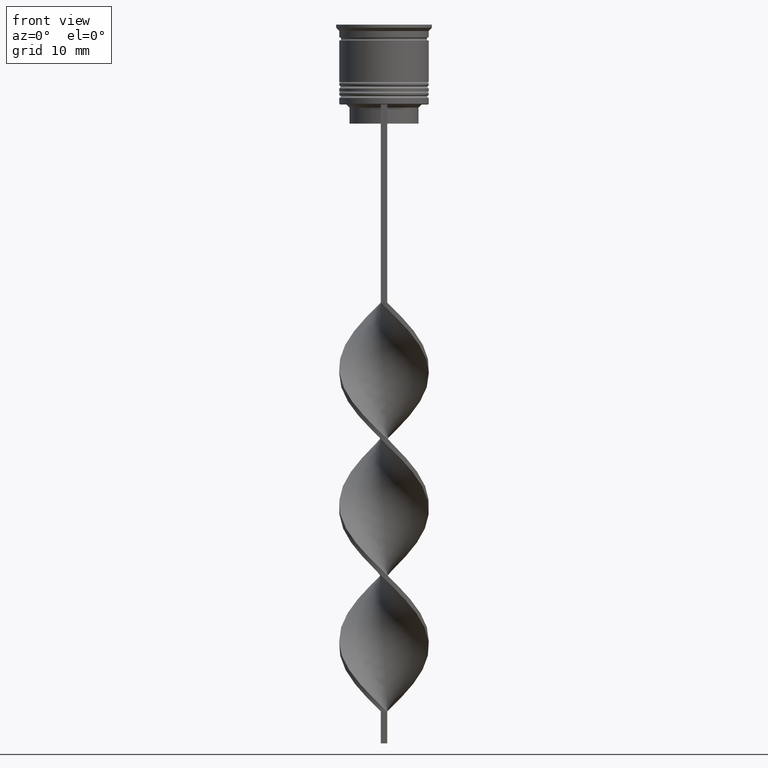
[diagram: clean part render]
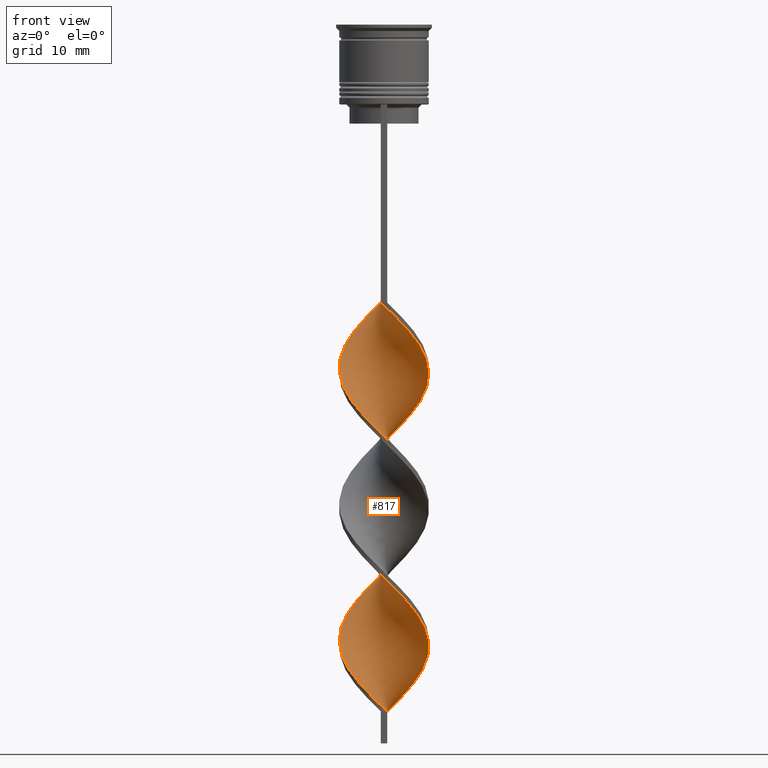
[diagram: same view with one face highlighted and labeled with its STEP entity id]
A machine part, front view. The second image highlights one B-rep face of the part: STEP entity #817.
In plain terms, the highlighted face is a freeform B-spline surface patch.
Its self-contained STEP definition (entity closure, byte-faithful):
#6 = CARTESIAN_POINT ( 'NONE',  ( -2.971407234896037863, 6.414580771288304284, -45.96153846153845990 ) ) ;
#35 = CARTESIAN_POINT ( 'NONE',  ( -1.349953882555824158, 6.939289008388872304, -44.32051282051282470 ) ) ;
#45 = CARTESIAN_POINT ( 'NONE',  ( -5.476854687890019058, -4.387945160064919747, -100.9358974358974308 ) ) ;
#53 = CARTESIAN_POINT ( 'NONE',  ( -2.160680558725931011, 6.676934889838587850, -45.14102564102563520 ) ) ;
#62 = CARTESIAN_POINT ( 'NONE',  ( -0.5000000000000000000, -6.999999999999997335, -43.50000000000000000 ) ) ;
#63 = CARTESIAN_POINT ( 'NONE',  ( 5.476854687890014617, -4.387945160064918859, -50.06410256410256210 ) ) ;
#69 = CARTESIAN_POINT ( 'NONE',  ( 3.695790217132984168, 5.965830593550582428, -104.2179487179487012 ) ) ;
#92 = CARTESIAN_POINT ( 'NONE',  ( -5.612054764172303756, 4.298947400341753600, -49.24358974358973740 ) ) ;
#98 = CARTESIAN_POINT ( 'NONE',  ( 4.267603233600013368, -5.571136566318104499, -48.42307692307691269 ) ) ;
#101 = CARTESIAN_POINT ( 'NONE',  ( 3.591144782915614453, -6.089317414547549490, -47.60256410256409509 ) ) ;
#105 = CARTESIAN_POINT ( 'NONE',  ( -7.051412738059782193, -0.5036723384328409825, -96.83333333333332860 ) ) ;
#123 = CARTESIAN_POINT ( 'NONE',  ( -6.009647691495620947, -3.722934602041179097, -57.44871794871794890 ) ) ;
#129 = CARTESIAN_POINT ( 'NONE',  ( 6.967048179568296362, 1.198476987909309566, -55.80769230769230660 ) ) ;
#137 = CARTESIAN_POINT ( 'NONE',  ( 7.051412738059782193, 0.5036723384328400943, -75.49999999999998579 ) ) ;
#145 =( BOUNDED_SURFACE ( )  B_SPLINE_SURFACE ( 1, 2, ( 
 ( #2018, #2595, #1323, #2883, #2056, #3129, #98, #3167, #949, #660, #395, #2612, #407, #1780, #2894, #129, #1251, #814, #1338, #295, #3250, #2975, #3550, #553, #2997, #1622, #234, #1355, #2460, #3570, #260, #1108, #1657, #3416, #601, #2831, #1462, #1956, #941, #886, #2811, #621, #3111, #1711, #3378, #3074, #586, #1974, #906, #2308, #926, #1738, #1431, #2029, #2845, #389, #1498, #3088, #2540, #1447, #650, #2587, #1760, #2604, #3362, #869, #1689, #2857, #2235, #3346, #1482, #349, #2011, #2567, #69, #336, #365, #2291, #312 ),
 ( #3400, #35, #53, #1160, #3123, #2251, #634, #92, #1213, #439, #2663, #2048, #1790, #3481, #3229, #2324, #417, #123, #732, #1262, #1826, #671, #2937, #1240, #2341, #3453, #2066, #1529, #2642, #2659, #1752, #3499, #1029, #1274, #2115, #1821, #1786, #1236, #2635, #137, #2358, #450, #2321, #1006, #956, #2041, #3151, #3217, #775, #801, #1042, #535, #1574, #477, #1593, #239, #1326, #3489, #3534, #2467, #3553, #3578, #1890, #1020, #3295, #2763, #742, #2687, #639, #1403, #45, #1744, #2614, #2316, #3441, #165, #2057, #680, #1781 ) ),
 .UNSPECIFIED., .F., .F., .F. ) 
 B_SPLINE_SURFACE_WITH_KNOTS ( ( 2, 2 ),
 ( 3, 2, 2, 2, 2, 2, 2, 2, 2, 2, 2, 2, 2, 2, 2, 2, 2, 2, 2, 2, 2, 2, 2, 2, 2, 2, 2, 2, 2, 2, 2, 2, 2, 2, 2, 2, 2, 2, 2, 3 ),
 ( 0.000000000000000000, 1.000000000000000000 ),
 ( 0.000000000000000000, 0.01923076923076923184, 0.03846153846153846367, 0.05769230769230769551, 0.07692307692307692735, 0.09615384615384615918, 0.1153846153846153910, 0.1346153846153846090, 0.1538461538461538547, 0.1730769230769230727, 0.1923076923076923184, 0.2115384615384615363, 0.2307692307692307820, 0.2500000000000000000, 0.2692307692307692180, 0.2884615384615384359, 0.3076923076923077094, 0.3269230769230769273, 0.3461538461538461453, 0.3653846153846153633, 0.3846153846153846367, 0.4038461538461538547, 0.4230769230769230727, 0.4423076923076922906, 0.4615384615384615641, 0.4807692307692307820, 0.5000000000000000000, 0.5192307692307692735, 0.5384615384615384359, 0.5576923076923077094, 0.5769230769230768718, 0.5961538461538461453, 0.6153846153846154188, 0.6346153846153845812, 0.6538461538461538547, 0.6730769230769231282, 0.6923076923076922906, 0.7115384615384615641, 0.7307692307692307265, 0.7500000000000000000 ),
 .UNSPECIFIED. ) 
 GEOMETRIC_REPRESENTATION_ITEM ( )  RATIONAL_B_SPLINE_SURFACE ( (
 ( 1.000000000000000000, 0.9927088740980539727, 1.000000000000000000, 0.9927088740980539727, 1.000000000000000000, 0.9927088740980539727, 1.000000000000000000, 0.9927088740980539727, 1.000000000000000000, 0.9927088740980539727, 1.000000000000000000, 0.9927088740980539727, 1.000000000000000000, 0.9927088740980539727, 1.000000000000000000, 0.9927088740980539727, 1.000000000000000000, 0.9927088740980539727, 1.000000000000000000, 0.9927088740980539727, 1.000000000000000000, 0.9927088740980539727, 1.000000000000000000, 0.9927088740980539727, 1.000000000000000000, 0.9927088740980539727, 1.000000000000000000, 0.9927088740980539727, 1.000000000000000000, 0.9927088740980539727, 1.000000000000000000, 0.9927088740980539727, 1.000000000000000000, 0.9927088740980539727, 1.000000000000000000, 0.9927088740980539727, 1.000000000000000000, 0.9927088740980539727, 1.000000000000000000, 0.9927088740980539727, 1.000000000000000000, 0.9927088740980539727, 1.000000000000000000, 0.9927088740980539727, 1.000000000000000000, 0.9927088740980539727, 1.000000000000000000, 0.9927088740980539727, 1.000000000000000000, 0.9927088740980539727, 1.000000000000000000, 0.9927088740980539727, 1.000000000000000000, 0.9927088740980539727, 1.000000000000000000, 0.9927088740980539727, 1.000000000000000000, 0.9927088740980539727, 1.000000000000000000, 0.9927088740980539727, 1.000000000000000000, 0.9927088740980539727, 1.000000000000000000, 0.9927088740980539727, 1.000000000000000000, 0.9927088740980539727, 1.000000000000000000, 0.9927088740980539727, 1.000000000000000000, 0.9927088740980539727, 1.000000000000000000, 0.9927088740980539727, 1.000000000000000000, 0.9927088740980539727, 1.000000000000000000, 0.9927088740980539727, 1.000000000000000000, 0.9927088740980539727, 1.000000000000000000),
 ( 1.000000000000000000, 0.9927088740980539727, 1.000000000000000000, 0.9927088740980539727, 1.000000000000000000, 0.9927088740980539727, 1.000000000000000000, 0.9927088740980539727, 1.000000000000000000, 0.9927088740980539727, 1.000000000000000000, 0.9927088740980539727, 1.000000000000000000, 0.9927088740980539727, 1.000000000000000000, 0.9927088740980539727, 1.000000000000000000, 0.9927088740980539727, 1.000000000000000000, 0.9927088740980539727, 1.000000000000000000, 0.9927088740980539727, 1.000000000000000000, 0.9927088740980539727, 1.000000000000000000, 0.9927088740980539727, 1.000000000000000000, 0.9927088740980539727, 1.000000000000000000, 0.9927088740980539727, 1.000000000000000000, 0.9927088740980539727, 1.000000000000000000, 0.9927088740980539727, 1.000000000000000000, 0.9927088740980539727, 1.000000000000000000, 0.9927088740980539727, 1.000000000000000000, 0.9927088740980539727, 1.000000000000000000, 0.9927088740980539727, 1.000000000000000000, 0.9927088740980539727, 1.000000000000000000, 0.9927088740980539727, 1.000000000000000000, 0.9927088740980539727, 1.000000000000000000, 0.9927088740980539727, 1.000000000000000000, 0.9927088740980539727, 1.000000000000000000, 0.9927088740980539727, 1.000000000000000000, 0.9927088740980539727, 1.000000000000000000, 0.9927088740980539727, 1.000000000000000000, 0.9927088740980539727, 1.000000000000000000, 0.9927088740980539727, 1.000000000000000000, 0.9927088740980539727, 1.000000000000000000, 0.9927088740980539727, 1.000000000000000000, 0.9927088740980539727, 1.000000000000000000, 0.9927088740980539727, 1.000000000000000000, 0.9927088740980539727, 1.000000000000000000, 0.9927088740980539727, 1.000000000000000000, 0.9927088740980539727, 1.000000000000000000, 0.9927088740980539727, 1.000000000000000000) ) ) 
 REPRESENTATION_ITEM ( '' )  SURFACE ( )  );
#152 = CARTESIAN_POINT ( 'NONE',  ( 5.612054764172301979, 4.298947400341747382, -101.7564102564102484 ) ) ;
#165 = CARTESIAN_POINT ( 'NONE',  ( -2.029523600043935616, -6.771790116641158264, -105.0384615384615330 ) ) ;
#234 = CARTESIAN_POINT ( 'NONE',  ( 0.5000000000000008882, 6.999999999999997335, -64.83333333333332860 ) ) ;
#239 = CARTESIAN_POINT ( 'NONE',  ( -2.971407234896037863, 6.414580771288304284, -88.62820512820513841 ) ) ;
#260 = CARTESIAN_POINT ( 'NONE',  ( -2.810334191479773036, 6.430553765594351212, -68.11538461538459899 ) ) ;
#261 = CARTESIAN_POINT ( 'NONE',  ( -3.591144782915619338, -6.089317414547553042, -103.3974358974358836 ) ) ;
#268 = CARTESIAN_POINT ( 'NONE',  ( 4.267603233600020474, 5.571136566318105388, -81.24358974358973740 ) ) ;
#285 = CARTESIAN_POINT ( 'NONE',  ( 2.029523600043936504, 6.771790116641158264, -83.70512820512820440 ) ) ;
#295 = CARTESIAN_POINT ( 'NONE',  ( 5.612054764172301979, 4.298947400341747382, -59.08974358974359120 ) ) ;
#312 = CARTESIAN_POINT ( 'NONE',  ( 0.5000000000000008882, 6.999999999999997335, -107.5000000000000000 ) ) ;
#329 = CARTESIAN_POINT ( 'NONE',  ( 4.420173199369931361, 5.517080415812866789, -60.73076923076922640 ) ) ;
#336 = CARTESIAN_POINT ( 'NONE',  ( 2.971407234896038307, 6.414580771288298067, -105.0384615384615330 ) ) ;
#344 = CARTESIAN_POINT ( 'NONE',  ( 6.888693778558713454, -1.340111198836289264, -53.34615384615383959 ) ) ;
#349 = CARTESIAN_POINT ( 'NONE',  ( 5.612054764172301979, 4.298947400341747382, -101.7564102564102484 ) ) ;
#352 = CARTESIAN_POINT ( 'NONE',  ( -2.160680558725931011, 6.676934889838587850, -87.80769230769230660 ) ) ;
#365 = CARTESIAN_POINT ( 'NONE',  ( 2.160680558725932343, 6.676934889838581633, -105.8589743589743506 ) ) ;
#386 = CARTESIAN_POINT ( 'NONE',  ( -6.725974819057657150, -2.176550059239735546, -98.47435897435896379 ) ) ;
#389 = CARTESIAN_POINT ( 'NONE',  ( 2.029523600043931175, -6.771790116641153823, -88.62820512820513841 ) ) ;
#395 = CARTESIAN_POINT ( 'NONE',  ( 6.367811255276632387, -2.949742330640456878, -51.70512820512820440 ) ) ;
#407 = CARTESIAN_POINT ( 'NONE',  ( 6.888693778558713454, -1.340111198836289264, -53.34615384615383959 ) ) ;
#410 = EDGE_CURVE ( 'NONE', #1446, #630, #1854, .T. ) ;
#411 = CARTESIAN_POINT ( 'NONE',  ( 5.016113981771116670, 4.908013908077306198, -102.5769230769230660 ) ) ;
#412 = CARTESIAN_POINT ( 'NONE',  ( 0.4999999999999991673, -7.000000000000002665, -107.5000000000000000 ) ) ;
#417 = CARTESIAN_POINT ( 'NONE',  ( -6.367811255276639493, -2.949742330640456434, -56.62820512820513130 ) ) ;
#429 = CARTESIAN_POINT ( 'NONE',  ( 6.722416142319168841, 2.014726087955040157, -99.29487179487178139 ) ) ;
#439 = CARTESIAN_POINT ( 'NONE',  ( -6.477784105070046650, 2.830975188000774967, -50.88461538461538680 ) ) ;
#447 = CARTESIAN_POINT ( 'NONE',  ( 6.367811255276632387, -2.949742330640456878, -94.37179487179486159 ) ) ;
#450 = CARTESIAN_POINT ( 'NONE',  ( 6.725974819057658038, 2.176550059239733326, -77.14102564102563520 ) ) ;
#464 = CARTESIAN_POINT ( 'NONE',  ( 2.971407234896035199, -6.414580771288305172, -67.29487179487178139 ) ) ;
#477 = CARTESIAN_POINT ( 'NONE',  ( -1.349953882555824158, 6.939289008388872304, -86.98717948717948900 ) ) ;
#481 = CARTESIAN_POINT ( 'NONE',  ( -1.349953882555827489, -6.939289008388866975, -85.34615384615385381 ) ) ;
#506 = CARTESIAN_POINT ( 'NONE',  ( 6.367811255276638605, 2.949742330640457322, -77.96153846153845279 ) ) ;
#521 = CARTESIAN_POINT ( 'NONE',  ( 4.420173199369933137, -5.517080415812873007, -68.93589743589743080 ) ) ;
#535 = CARTESIAN_POINT ( 'NONE',  ( 0.3499538825558280997, 7.060710991611133025, -85.34615384615383959 ) ) ;
#553 = CARTESIAN_POINT ( 'NONE',  ( 2.971407234896038307, 6.414580771288298067, -62.37179487179486870 ) ) ;
#554 = CARTESIAN_POINT ( 'NONE',  ( -7.009230458814042386, 0.3474023247382359014, -96.01282051282051100 ) ) ;
#586 = CARTESIAN_POINT ( 'NONE',  ( -5.016113981771117558, -4.908013908077305310, -81.24358974358973740 ) ) ;
#601 = CARTESIAN_POINT ( 'NONE',  ( -5.476854687890014617, 4.387945160064918859, -71.39743589743588359 ) ) ;
#612 = CARTESIAN_POINT ( 'NONE',  ( -1.349953882555824158, 6.939289008388872304, -44.32051282051282470 ) ) ;
#615 = CARTESIAN_POINT ( 'NONE',  ( 2.971407234896037863, 6.414580771288298067, -62.37179487179486870 ) ) ;
#621 = CARTESIAN_POINT ( 'NONE',  ( -6.967048179568297250, -1.198476987909306679, -77.14102564102563520 ) ) ;
#630 = VERTEX_POINT ( 'NONE', #412 ) ;
#634 = CARTESIAN_POINT ( 'NONE',  ( -5.016113981771117558, 4.908013908077312415, -48.42307692307691269 ) ) ;
#639 = CARTESIAN_POINT ( 'NONE',  ( -6.367811255276639493, -2.949742330640456434, -99.29487179487178139 ) ) ;
#642 = CARTESIAN_POINT ( 'NONE',  ( 6.722416142319168841, 2.014726087955040157, -56.62820512820513130 ) ) ;
#650 = CARTESIAN_POINT ( 'NONE',  ( 5.476854687890014617, -4.387945160064918859, -92.73076923076922640 ) ) ;
#656 = CARTESIAN_POINT ( 'NONE',  ( 0.4999999999999996669, -2.333333333333336590, -107.5000000000000000 ) ) ;
#659 = VECTOR ( 'NONE', #1068, 1000.000000000000000 ) ;
#660 = CARTESIAN_POINT ( 'NONE',  ( 6.009647691495616506, -3.722934602041177321, -50.88461538461538680 ) ) ;
#664 = CARTESIAN_POINT ( 'NONE',  ( -2.029523600043928955, 6.771790116641154711, -67.29487179487178139 ) ) ;
#671 = CARTESIAN_POINT ( 'NONE',  ( -3.591144782915619338, -6.089317414547552154, -60.73076923076922640 ) ) ;
#679 = CARTESIAN_POINT ( 'NONE',  ( -4.267603233600019585, -5.571136566318106276, -59.91025641025640880 ) ) ;
#680 = CARTESIAN_POINT ( 'NONE',  ( -0.3499538825558272115, -7.060710991611133025, -106.6794871794871682 ) ) ;
#683 = CARTESIAN_POINT ( 'NONE',  ( 2.971407234896037863, 6.414580771288298067, -105.0384615384615188 ) ) ;
#699 = CARTESIAN_POINT ( 'NONE',  ( -7.051412738059777752, 0.5036723384328427588, -75.50000000000000000 ) ) ;
#721 = CARTESIAN_POINT ( 'NONE',  ( -6.725974819057651821, 2.176550059239734658, -73.85897435897436480 ) ) ;
#732 = CARTESIAN_POINT ( 'NONE',  ( -5.476854687890019058, -4.387945160064919747, -58.26923076923076650 ) ) ;
#742 = CARTESIAN_POINT ( 'NONE',  ( -6.888693778558718783, -1.340111198836287487, -97.65384615384614619 ) ) ;
#762 = CARTESIAN_POINT ( 'NONE',  ( 2.029523600043931175, -6.771790116641153823, -88.62820512820512420 ) ) ;
#775 = CARTESIAN_POINT ( 'NONE',  ( 2.810334191479780586, 6.430553765594353877, -82.88461538461537259 ) ) ;
#782 = CARTESIAN_POINT ( 'NONE',  ( 6.725974819057658038, 2.176550059239732882, -77.14102564102563520 ) ) ;
#801 = CARTESIAN_POINT ( 'NONE',  ( 2.029523600043936060, 6.771790116641158264, -83.70512820512820440 ) ) ;
#814 = CARTESIAN_POINT ( 'NONE',  ( 6.477784105070041321, 2.830975188000771858, -57.44871794871794890 ) ) ;
#815 = CARTESIAN_POINT ( 'NONE',  ( -4.944061684284419833, -5.052955718088660397, -101.7564102564102484 ) ) ;
#817 = ADVANCED_FACE ( 'NONE', ( #2704 ), #145, .T. ) ;
#839 = CARTESIAN_POINT ( 'NONE',  ( 0.5000000000000008882, 6.999999999999997335, -107.5000000000000000 ) ) ;
#869 = CARTESIAN_POINT ( 'NONE',  ( 7.051412738059776864, -0.5036723384328418707, -96.83333333333332860 ) ) ;
#870 = CARTESIAN_POINT ( 'NONE',  ( -6.888693778558718783, -1.340111198836287487, -97.65384615384614619 ) ) ;
#880 = CARTESIAN_POINT ( 'NONE',  ( 0.3499538825558234922, -7.060710991611127696, -44.32051282051282470 ) ) ;
#886 = CARTESIAN_POINT ( 'NONE',  ( -7.051412738059776864, 0.5036723384328427588, -75.49999999999998579 ) ) ;
#906 = CARTESIAN_POINT ( 'NONE',  ( -3.695790217132987721, -5.965830593550580652, -82.88461538461537259 ) ) ;
#921 = CARTESIAN_POINT ( 'NONE',  ( 7.009230458814037057, 0.3474023247382328483, -54.98717948717948190 ) ) ;
#926 = CARTESIAN_POINT ( 'NONE',  ( -2.160680558725935896, -6.676934889838579856, -84.52564102564103621 ) ) ;
#938 = CARTESIAN_POINT ( 'NONE',  ( -2.029523600043935616, -6.771790116641158264, -105.0384615384615188 ) ) ;
#941 = CARTESIAN_POINT ( 'NONE',  ( -6.888693778558713454, 1.340111198836291706, -74.67948717948718240 ) ) ;
#949 = CARTESIAN_POINT ( 'NONE',  ( 5.476854687890014617, -4.387945160064918859, -50.06410256410256210 ) ) ;
#950 = CARTESIAN_POINT ( 'NONE',  ( -3.591144782915619338, -6.089317414547553042, -60.73076923076922640 ) ) ;
#953 = CARTESIAN_POINT ( 'NONE',  ( 3.695790217132984168, 5.965830593550582428, -61.55128205128204399 ) ) ;
#956 = CARTESIAN_POINT ( 'NONE',  ( 5.476854687890019946, 4.387945160064918859, -79.60256410256410220 ) ) ;
#973 = CARTESIAN_POINT ( 'NONE',  ( 5.476854687890014617, -4.387945160064918859, -92.73076923076922640 ) ) ;
#983 = CARTESIAN_POINT ( 'NONE',  ( -6.044919434621174759, 3.564961294171264949, -92.73076923076922640 ) ) ;
#989 = CARTESIAN_POINT ( 'NONE',  ( -6.009647691495613842, 3.722934602041180430, -72.21794871794871540 ) ) ;
#1004 = CARTESIAN_POINT ( 'NONE',  ( 4.420173199369931361, 5.517080415812866789, -103.3974358974358836 ) ) ;
#1006 = CARTESIAN_POINT ( 'NONE',  ( 6.009647691495623612, 3.722934602041175989, -78.78205128205127039 ) ) ;
#1020 = CARTESIAN_POINT ( 'NONE',  ( -6.967048179568302579, 1.198476987909311342, -95.19230769230769340 ) ) ;
#1024 = CARTESIAN_POINT ( 'NONE',  ( -5.612054764172303756, -4.298947400341743830, -80.42307692307691980 ) ) ;
#1029 = CARTESIAN_POINT ( 'NONE',  ( 5.016113981771116670, -4.908013908077313303, -69.75641025641024839 ) ) ;
#1042 = CARTESIAN_POINT ( 'NONE',  ( 1.189738741299885438, 6.916250554126144756, -84.52564102564103621 ) ) ;
#1046 = CARTESIAN_POINT ( 'NONE',  ( -3.695790217132987721, -5.965830593550580652, -82.88461538461537259 ) ) ;
#1062 = CARTESIAN_POINT ( 'NONE',  ( 7.009230458814042386, -0.3474023247382383994, -74.67948717948718240 ) ) ;
#1068 = DIRECTION ( 'NONE',  ( 0.000000000000000000, 1.000000000000000000, 0.000000000000000000 ) ) ;
#1108 = CARTESIAN_POINT ( 'NONE',  ( -3.591144782915613565, 6.089317414547550378, -68.93589743589743080 ) ) ;
#1111 = CARTESIAN_POINT ( 'NONE',  ( 1.189738741299885438, 6.916250554126144756, -84.52564102564103621 ) ) ;
#1115 = CARTESIAN_POINT ( 'NONE',  ( -5.612054764172303756, 4.298947400341753600, -49.24358974358974450 ) ) ;
#1133 = CARTESIAN_POINT ( 'NONE',  ( -5.016113981771117558, 4.908013908077312415, -48.42307692307691269 ) ) ;
#1144 = CARTESIAN_POINT ( 'NONE',  ( -2.810334191479776589, -6.430553765594355653, -104.2179487179487012 ) ) ;
#1160 = CARTESIAN_POINT ( 'NONE',  ( -2.971407234896037863, 6.414580771288304284, -45.96153846153845279 ) ) ;
#1167 = CARTESIAN_POINT ( 'NONE',  ( -7.009230458814042386, 0.3474023247382359014, -53.34615384615383959 ) ) ;
#1169 = CARTESIAN_POINT ( 'NONE',  ( -0.5000000000000000000, -6.999999999999997335, -43.50000000000000000 ) ) ;
#1184 = CARTESIAN_POINT ( 'NONE',  ( 2.160680558725932343, 6.676934889838581633, -63.19230769230768630 ) ) ;
#1205 = CARTESIAN_POINT ( 'NONE',  ( -2.810334191479776589, -6.430553765594355653, -61.55128205128204399 ) ) ;
#1213 = CARTESIAN_POINT ( 'NONE',  ( -6.044919434621174759, 3.564961294171264949, -50.06410256410256210 ) ) ;
#1222 = CARTESIAN_POINT ( 'NONE',  ( -5.476854687890019058, -4.387945160064919747, -58.26923076923076650 ) ) ;
#1225 = CARTESIAN_POINT ( 'NONE',  ( 6.009647691495615618, -3.722934602041177765, -50.88461538461537970 ) ) ;
#1236 = CARTESIAN_POINT ( 'NONE',  ( 6.967048179568301691, -1.198476987909310898, -73.85897435897436480 ) ) ;
#1240 = CARTESIAN_POINT ( 'NONE',  ( -2.029523600043935616, -6.771790116641158264, -62.37179487179486870 ) ) ;
#1251 = CARTESIAN_POINT ( 'NONE',  ( 6.722416142319168841, 2.014726087955040157, -56.62820512820513130 ) ) ;
#1262 = CARTESIAN_POINT ( 'NONE',  ( -4.944061684284419833, -5.052955718088660397, -59.08974358974359120 ) ) ;
#1267 =( BOUNDED_CURVE ( )  B_SPLINE_CURVE ( 2, ( #1169, #880, #2263, #1720, #1456, #101, #2561, #1968, #63, #1225, #2302, #2319, #344, #1701, #921, #1471, #642, #1494, #3426, #2826, #3373, #329, #953, #615, #1184, #2279, #3394, #2005, #3144, #664, #2886, #2913, #1558, #2060, #3518, #989, #2899, #721, #3197, #699, #1272, #3170, #2076, #2371, #2414, #1024, #1836, #1524, #1046, #2931, #2964, #481, #3183, #2632, #1547, #762, #2690, #1853, #1596, #3463, #973, #3477, #447, #3493, #3222, #3239, #1800, #2129, #429, #2333, #2655, #152, #411, #1004, #2112, #683, #2090, #2712, #1819 ),
 .UNSPECIFIED., .F., .T. ) 
 B_SPLINE_CURVE_WITH_KNOTS ( ( 3, 2, 2, 2, 2, 2, 2, 2, 2, 2, 2, 2, 2, 2, 2, 2, 2, 2, 2, 2, 2, 2, 2, 2, 2, 2, 2, 2, 2, 2, 2, 2, 2, 2, 2, 2, 2, 2, 2, 3 ),
 ( 0.000000000000000000, 0.01923076923076923184, 0.03846153846153846367, 0.05769230769230768857, 0.07692307692307692735, 0.09615384615384615918, 0.1153846153846153771, 0.1346153846153846090, 0.1538461538461538547, 0.1730769230769230449, 0.1923076923076923184, 0.2115384615384615363, 0.2307692307692307543, 0.2500000000000000000, 0.2692307692307692180, 0.2884615384615384359, 0.3076923076923077094, 0.3269230769230769273, 0.3461538461538460898, 0.3653846153846153633, 0.3846153846153846367, 0.4038461538461539102, 0.4230769230769230727, 0.4423076923076922906, 0.4615384615384615086, 0.4807692307692307820, 0.5000000000000000000, 0.5192307692307692735, 0.5384615384615384359, 0.5576923076923077094, 0.5769230769230768718, 0.5961538461538461453, 0.6153846153846154188, 0.6346153846153845812, 0.6538461538461538547, 0.6730769230769230171, 0.6923076923076921796, 0.7115384615384615641, 0.7307692307692307265, 0.7500000000000000000 ),
 .UNSPECIFIED. ) 
 CURVE ( )  GEOMETRIC_REPRESENTATION_ITEM ( )  RATIONAL_B_SPLINE_CURVE ( ( 1.000000000000000000, 0.9927088740980539727, 1.000000000000000000, 0.9927088740980539727, 1.000000000000000000, 0.9927088740980539727, 1.000000000000000000, 0.9927088740980539727, 1.000000000000000000, 0.9927088740980539727, 1.000000000000000000, 0.9927088740980539727, 1.000000000000000000, 0.9927088740980539727, 1.000000000000000000, 0.9927088740980539727, 1.000000000000000000, 0.9927088740980539727, 1.000000000000000000, 0.9927088740980539727, 1.000000000000000000, 0.9927088740980539727, 1.000000000000000000, 0.9927088740980539727, 1.000000000000000000, 0.9927088740980539727, 1.000000000000000000, 0.9927088740980539727, 1.000000000000000000, 0.9927088740980539727, 1.000000000000000000, 0.9927088740980539727, 1.000000000000000000, 0.9927088740980539727, 1.000000000000000000, 0.9927088740980539727, 1.000000000000000000, 0.9927088740980539727, 1.000000000000000000, 0.9927088740980539727, 1.000000000000000000, 0.9927088740980539727, 1.000000000000000000, 0.9927088740980539727, 1.000000000000000000, 0.9927088740980539727, 1.000000000000000000, 0.9927088740980539727, 1.000000000000000000, 0.9927088740980539727, 1.000000000000000000, 0.9927088740980539727, 1.000000000000000000, 0.9927088740980539727, 1.000000000000000000, 0.9927088740980539727, 1.000000000000000000, 0.9927088740980539727, 1.000000000000000000, 0.9927088740980539727, 1.000000000000000000, 0.9927088740980539727, 1.000000000000000000, 0.9927088740980539727, 1.000000000000000000, 0.9927088740980539727, 1.000000000000000000, 0.9927088740980539727, 1.000000000000000000, 0.9927088740980539727, 1.000000000000000000, 0.9927088740980539727, 1.000000000000000000, 0.9927088740980539727, 1.000000000000000000, 0.9927088740980539727, 1.000000000000000000, 0.9927088740980539727, 1.000000000000000000 ) ) 
 REPRESENTATION_ITEM ( '' )  );
#1272 = CARTESIAN_POINT ( 'NONE',  ( -7.009230458814037057, -0.3474023247382289625, -76.32051282051281760 ) ) ;
#1274 = CARTESIAN_POINT ( 'NONE',  ( 5.612054764172302868, -4.298947400341755376, -70.57692307692306599 ) ) ;
#1284 = CARTESIAN_POINT ( 'NONE',  ( -6.477784105070046650, 2.830975188000775411, -93.55128205128204399 ) ) ;
#1314 = CARTESIAN_POINT ( 'NONE',  ( 6.477784105070043985, -2.830975188000779408, -72.21794871794871540 ) ) ;
#1318 = CARTESIAN_POINT ( 'NONE',  ( -0.5000000000000000000, 7.000000000000002665, -43.50000000000000000 ) ) ;
#1323 = CARTESIAN_POINT ( 'NONE',  ( 1.189738741299877445, -6.916250554126140315, -45.14102564102563520 ) ) ;
#1326 = CARTESIAN_POINT ( 'NONE',  ( -3.695790217132985944, 5.965830593550586869, -89.44871794871794179 ) ) ;
#1338 = CARTESIAN_POINT ( 'NONE',  ( 6.044919434621172094, 3.564961294171260509, -58.26923076923076650 ) ) ;
#1355 = CARTESIAN_POINT ( 'NONE',  ( -0.3499538825558217714, 7.060710991611127696, -65.65384615384614619 ) ) ;
#1396 = CARTESIAN_POINT ( 'NONE',  ( 0.3499538825558280997, 7.060710991611133025, -85.34615384615385381 ) ) ;
#1403 = CARTESIAN_POINT ( 'NONE',  ( -6.009647691495620947, -3.722934602041179097, -100.1153846153846274 ) ) ;
#1431 = CARTESIAN_POINT ( 'NONE',  ( -0.5000000000000000000, -6.999999999999997335, -86.16666666666667140 ) ) ;
#1446 = VERTEX_POINT ( 'NONE', #1318 ) ;
#1447 = CARTESIAN_POINT ( 'NONE',  ( 4.944061684284414504, -5.052955718088659509, -91.91025641025643722 ) ) ;
#1456 = CARTESIAN_POINT ( 'NONE',  ( 2.810334191479773480, -6.430553765594351212, -46.78205128205127750 ) ) ;
#1462 = CARTESIAN_POINT ( 'NONE',  ( -6.367811255276632387, 2.949742330640457766, -73.03846153846153300 ) ) ;
#1471 = CARTESIAN_POINT ( 'NONE',  ( 6.967048179568297250, 1.198476987909309344, -55.80769230769230660 ) ) ;
#1475 = CARTESIAN_POINT ( 'NONE',  ( 0.4999999999999991673, -7.000000000000002665, -107.5000000000000000 ) ) ;
#1482 = CARTESIAN_POINT ( 'NONE',  ( 6.044919434621172094, 3.564961294171260509, -100.9358974358974308 ) ) ;
#1494 = CARTESIAN_POINT ( 'NONE',  ( 6.477784105070041321, 2.830975188000771858, -57.44871794871794890 ) ) ;
#1497 = CARTESIAN_POINT ( 'NONE',  ( -6.367811255276639493, -2.949742330640456434, -99.29487179487178139 ) ) ;
#1498 = CARTESIAN_POINT ( 'NONE',  ( 2.810334191479773480, -6.430553765594351212, -89.44871794871794179 ) ) ;
#1524 = CARTESIAN_POINT ( 'NONE',  ( -4.420173199369932249, -5.517080415812866789, -82.06410256410255499 ) ) ;
#1529 = CARTESIAN_POINT ( 'NONE',  ( 1.349953882555822382, -6.939289008388872304, -65.65384615384614619 ) ) ;
#1547 = CARTESIAN_POINT ( 'NONE',  ( 1.189738741299877445, -6.916250554126140315, -87.80769230769230660 ) ) ;
#1558 = CARTESIAN_POINT ( 'NONE',  ( -4.267603233600012480, 5.571136566318105388, -69.75641025641024839 ) ) ;
#1574 = CARTESIAN_POINT ( 'NONE',  ( -0.5000000000000000000, 7.000000000000002665, -86.16666666666667140 ) ) ;
#1593 = CARTESIAN_POINT ( 'NONE',  ( -2.160680558725931011, 6.676934889838587850, -87.80769230769230660 ) ) ;
#1596 = CARTESIAN_POINT ( 'NONE',  ( 4.267603233600013368, -5.571136566318104499, -91.08974358974359120 ) ) ;
#1606 = EDGE_LOOP ( 'NONE', ( #2965, #2769, #3395, #3279 ) ) ;
#1622 = CARTESIAN_POINT ( 'NONE',  ( 1.349953882555826601, 6.939289008388866975, -64.01282051282051100 ) ) ;
#1631 = CARTESIAN_POINT ( 'NONE',  ( 5.476854687890019946, 4.387945160064918859, -79.60256410256410220 ) ) ;
#1647 = CARTESIAN_POINT ( 'NONE',  ( 2.160680558725928790, -6.676934889838588738, -66.47435897435896379 ) ) ;
#1657 = CARTESIAN_POINT ( 'NONE',  ( -4.267603233600012480, 5.571136566318105388, -69.75641025641024839 ) ) ;
#1659 = EDGE_CURVE ( 'NONE', #1894, #1446, #2538, .T. ) ;
#1689 = CARTESIAN_POINT ( 'NONE',  ( 7.009230458814037057, 0.3474023247382328483, -97.65384615384614619 ) ) ;
#1701 = CARTESIAN_POINT ( 'NONE',  ( 7.051412738059777752, -0.5036723384328418707, -54.16666666666666430 ) ) ;
#1711 = CARTESIAN_POINT ( 'NONE',  ( -6.477784105070042209, -2.830975188000768306, -78.78205128205127039 ) ) ;
#1720 = CARTESIAN_POINT ( 'NONE',  ( 2.029523600043931175, -6.771790116641153823, -45.96153846153845990 ) ) ;
#1738 = CARTESIAN_POINT ( 'NONE',  ( -1.349953882555827489, -6.939289008388866975, -85.34615384615383959 ) ) ;
#1744 = CARTESIAN_POINT ( 'NONE',  ( -4.944061684284419833, -5.052955718088660397, -101.7564102564102484 ) ) ;
#1752 = CARTESIAN_POINT ( 'NONE',  ( 3.695790217132985500, -5.965830593550586869, -68.11538461538459899 ) ) ;
#1760 = CARTESIAN_POINT ( 'NONE',  ( 6.367811255276632387, -2.949742330640456878, -94.37179487179486159 ) ) ;
#1780 = CARTESIAN_POINT ( 'NONE',  ( 7.051412738059776864, -0.5036723384328418707, -54.16666666666665719 ) ) ;
#1781 = CARTESIAN_POINT ( 'NONE',  ( 0.4999999999999991673, -7.000000000000002665, -107.5000000000000000 ) ) ;
#1786 = CARTESIAN_POINT ( 'NONE',  ( 6.722416142319174170, -2.014726087955045042, -73.03846153846153300 ) ) ;
#1790 = CARTESIAN_POINT ( 'NONE',  ( -7.009230458814042386, 0.3474023247382359014, -53.34615384615383959 ) ) ;
#1800 = CARTESIAN_POINT ( 'NONE',  ( 7.009230458814037057, 0.3474023247382328483, -97.65384615384614619 ) ) ;
#1819 = CARTESIAN_POINT ( 'NONE',  ( 0.5000000000000008882, 6.999999999999997335, -107.5000000000000000 ) ) ;
#1821 = CARTESIAN_POINT ( 'NONE',  ( 6.477784105070043985, -2.830975188000778964, -72.21794871794871540 ) ) ;
#1826 = CARTESIAN_POINT ( 'NONE',  ( -4.267603233600019585, -5.571136566318106276, -59.91025641025640880 ) ) ;
#1836 = CARTESIAN_POINT ( 'NONE',  ( -5.016113981771117558, -4.908013908077305310, -81.24358974358973740 ) ) ;
#1853 = CARTESIAN_POINT ( 'NONE',  ( 3.591144782915614453, -6.089317414547549490, -90.26923076923077360 ) ) ;
#1854 =( BOUNDED_CURVE ( )  B_SPLINE_CURVE ( 2, ( #1911, #612, #1966, #6, #2824, #3083, #1133, #1115, #2770, #2211, #2493, #2226, #1167, #3339, #2549, #1985, #2353, #2019, #1222, #3460, #679, #950, #1205, #3408, #2315, #2745, #3029, #2195, #1647, #464, #2173, #521, #3599, #2692, #3008, #1314, #2966, #2432, #1062, #2150, #3259, #782, #506, #2729, #1631, #2254, #268, #2781, #2488, #285, #1111, #1396, #2504, #2032, #352, #2327, #3191, #2348, #2311, #3419, #983, #1284, #2382, #3212, #554, #105, #870, #386, #1497, #3291, #2203, #815, #3309, #261, #1144, #938, #3018, #1957, #1475 ),
 .UNSPECIFIED., .F., .T. ) 
 B_SPLINE_CURVE_WITH_KNOTS ( ( 3, 2, 2, 2, 2, 2, 2, 2, 2, 2, 2, 2, 2, 2, 2, 2, 2, 2, 2, 2, 2, 2, 2, 2, 2, 2, 2, 2, 2, 2, 2, 2, 2, 2, 2, 2, 2, 2, 2, 3 ),
 ( 0.000000000000000000, 0.01923076923076923184, 0.03846153846153846367, 0.05769230769230768857, 0.07692307692307692735, 0.09615384615384615918, 0.1153846153846153771, 0.1346153846153846090, 0.1538461538461538547, 0.1730769230769230449, 0.1923076923076923184, 0.2115384615384615363, 0.2307692307692307543, 0.2500000000000000000, 0.2692307692307692180, 0.2884615384615384359, 0.3076923076923077094, 0.3269230769230769273, 0.3461538461538460898, 0.3653846153846153633, 0.3846153846153846367, 0.4038461538461539102, 0.4230769230769230727, 0.4423076923076922906, 0.4615384615384615086, 0.4807692307692307820, 0.5000000000000000000, 0.5192307692307692735, 0.5384615384615384359, 0.5576923076923077094, 0.5769230769230768718, 0.5961538461538461453, 0.6153846153846154188, 0.6346153846153845812, 0.6538461538461538547, 0.6730769230769230171, 0.6923076923076921796, 0.7115384615384615641, 0.7307692307692307265, 0.7500000000000000000 ),
 .UNSPECIFIED. ) 
 CURVE ( )  GEOMETRIC_REPRESENTATION_ITEM ( )  RATIONAL_B_SPLINE_CURVE ( ( 1.000000000000000000, 0.9927088740980539727, 1.000000000000000000, 0.9927088740980539727, 1.000000000000000000, 0.9927088740980539727, 1.000000000000000000, 0.9927088740980539727, 1.000000000000000000, 0.9927088740980539727, 1.000000000000000000, 0.9927088740980539727, 1.000000000000000000, 0.9927088740980539727, 1.000000000000000000, 0.9927088740980539727, 1.000000000000000000, 0.9927088740980539727, 1.000000000000000000, 0.9927088740980539727, 1.000000000000000000, 0.9927088740980539727, 1.000000000000000000, 0.9927088740980539727, 1.000000000000000000, 0.9927088740980539727, 1.000000000000000000, 0.9927088740980539727, 1.000000000000000000, 0.9927088740980539727, 1.000000000000000000, 0.9927088740980539727, 1.000000000000000000, 0.9927088740980539727, 1.000000000000000000, 0.9927088740980539727, 1.000000000000000000, 0.9927088740980539727, 1.000000000000000000, 0.9927088740980539727, 1.000000000000000000, 0.9927088740980539727, 1.000000000000000000, 0.9927088740980539727, 1.000000000000000000, 0.9927088740980539727, 1.000000000000000000, 0.9927088740980539727, 1.000000000000000000, 0.9927088740980539727, 1.000000000000000000, 0.9927088740980539727, 1.000000000000000000, 0.9927088740980539727, 1.000000000000000000, 0.9927088740980539727, 1.000000000000000000, 0.9927088740980539727, 1.000000000000000000, 0.9927088740980539727, 1.000000000000000000, 0.9927088740980539727, 1.000000000000000000, 0.9927088740980539727, 1.000000000000000000, 0.9927088740980539727, 1.000000000000000000, 0.9927088740980539727, 1.000000000000000000, 0.9927088740980539727, 1.000000000000000000, 0.9927088740980539727, 1.000000000000000000, 0.9927088740980539727, 1.000000000000000000, 0.9927088740980539727, 1.000000000000000000, 0.9927088740980539727, 1.000000000000000000 ) ) 
 REPRESENTATION_ITEM ( '' )  );
#1890 = CARTESIAN_POINT ( 'NONE',  ( -6.722416142319174170, 2.014726087955044598, -94.37179487179486159 ) ) ;
#1894 = VERTEX_POINT ( 'NONE', #62 ) ;
#1911 = CARTESIAN_POINT ( 'NONE',  ( -0.5000000000000000000, 7.000000000000002665, -43.50000000000000000 ) ) ;
#1956 = CARTESIAN_POINT ( 'NONE',  ( -6.725974819057651821, 2.176550059239735102, -73.85897435897436480 ) ) ;
#1957 = CARTESIAN_POINT ( 'NONE',  ( -0.3499538825558272115, -7.060710991611133025, -106.6794871794871824 ) ) ;
#1966 = CARTESIAN_POINT ( 'NONE',  ( -2.160680558725931011, 6.676934889838587850, -45.14102564102563520 ) ) ;
#1968 = CARTESIAN_POINT ( 'NONE',  ( 4.944061684284414504, -5.052955718088659509, -49.24358974358974450 ) ) ;
#1974 = CARTESIAN_POINT ( 'NONE',  ( -4.420173199369932249, -5.517080415812865901, -82.06410256410255499 ) ) ;
#1985 = CARTESIAN_POINT ( 'NONE',  ( -6.725974819057657150, -2.176550059239735546, -55.80769230769230660 ) ) ;
#2005 = CARTESIAN_POINT ( 'NONE',  ( -0.3499538825558217714, 7.060710991611127696, -65.65384615384614619 ) ) ;
#2011 = CARTESIAN_POINT ( 'NONE',  ( 5.016113981771116670, 4.908013908077306198, -102.5769230769230660 ) ) ;
#2018 = CARTESIAN_POINT ( 'NONE',  ( -0.5000000000000000000, -6.999999999999997335, -43.50000000000000000 ) ) ;
#2019 = CARTESIAN_POINT ( 'NONE',  ( -6.009647691495620947, -3.722934602041179097, -57.44871794871794890 ) ) ;
#2029 = CARTESIAN_POINT ( 'NONE',  ( 0.3499538825558234922, -7.060710991611127696, -86.98717948717948900 ) ) ;
#2032 = CARTESIAN_POINT ( 'NONE',  ( -1.349953882555824158, 6.939289008388872304, -86.98717948717948900 ) ) ;
#2041 = CARTESIAN_POINT ( 'NONE',  ( 4.944061684284423386, 5.052955718088656845, -80.42307692307691980 ) ) ;
#2048 = CARTESIAN_POINT ( 'NONE',  ( -6.967048179568302579, 1.198476987909311342, -52.52564102564103621 ) ) ;
#2056 = CARTESIAN_POINT ( 'NONE',  ( 2.810334191479773480, -6.430553765594351212, -46.78205128205127750 ) ) ;
#2057 = CARTESIAN_POINT ( 'NONE',  ( -1.189738741299881442, -6.916250554126144756, -105.8589743589743506 ) ) ;
#2060 = CARTESIAN_POINT ( 'NONE',  ( -4.944061684284411839, 5.052955718088659509, -70.57692307692306599 ) ) ;
#2066 = CARTESIAN_POINT ( 'NONE',  ( 0.4999999999999991673, -7.000000000000002665, -64.83333333333332860 ) ) ;
#2076 = CARTESIAN_POINT ( 'NONE',  ( -6.722416142319169730, -2.014726087955041045, -77.96153846153845279 ) ) ;
#2090 = CARTESIAN_POINT ( 'NONE',  ( 2.160680558725932343, 6.676934889838581633, -105.8589743589743506 ) ) ;
#2112 = CARTESIAN_POINT ( 'NONE',  ( 3.695790217132984168, 5.965830593550582428, -104.2179487179487012 ) ) ;
#2115 = CARTESIAN_POINT ( 'NONE',  ( 6.044919434621174759, -3.564961294171264949, -71.39743589743588359 ) ) ;
#2129 = CARTESIAN_POINT ( 'NONE',  ( 6.967048179568297250, 1.198476987909309344, -98.47435897435896379 ) ) ;
#2150 = CARTESIAN_POINT ( 'NONE',  ( 7.051412738059782193, 0.5036723384328402053, -75.50000000000000000 ) ) ;
#2173 = CARTESIAN_POINT ( 'NONE',  ( 3.695790217132985500, -5.965830593550586869, -68.11538461538459899 ) ) ;
#2180 = EDGE_CURVE ( 'NONE', #3181, #630, #3590, .T. ) ;
#2195 = CARTESIAN_POINT ( 'NONE',  ( 1.349953882555822382, -6.939289008388872304, -65.65384615384614619 ) ) ;
#2203 = CARTESIAN_POINT ( 'NONE',  ( -5.476854687890019058, -4.387945160064919747, -100.9358974358974308 ) ) ;
#2211 = CARTESIAN_POINT ( 'NONE',  ( -6.477784105070046650, 2.830975188000775411, -50.88461538461537970 ) ) ;
#2226 = CARTESIAN_POINT ( 'NONE',  ( -6.967048179568302579, 1.198476987909311120, -52.52564102564102910 ) ) ;
#2235 = CARTESIAN_POINT ( 'NONE',  ( 6.722416142319168841, 2.014726087955040157, -99.29487179487178139 ) ) ;
#2251 = CARTESIAN_POINT ( 'NONE',  ( -4.420173199369934025, 5.517080415812871230, -47.60256410256408799 ) ) ;
#2254 = CARTESIAN_POINT ( 'NONE',  ( 4.944061684284423386, 5.052955718088656845, -80.42307692307691980 ) ) ;
#2263 = CARTESIAN_POINT ( 'NONE',  ( 1.189738741299877445, -6.916250554126140315, -45.14102564102563520 ) ) ;
#2279 = CARTESIAN_POINT ( 'NONE',  ( 1.349953882555826601, 6.939289008388866975, -64.01282051282051100 ) ) ;
#2291 = CARTESIAN_POINT ( 'NONE',  ( 1.349953882555826601, 6.939289008388866975, -106.6794871794871682 ) ) ;
#2302 = CARTESIAN_POINT ( 'NONE',  ( 6.367811255276632387, -2.949742330640456878, -51.70512820512820440 ) ) ;
#2308 = CARTESIAN_POINT ( 'NONE',  ( -2.971407234896039196, -6.414580771288298067, -83.70512820512820440 ) ) ;
#2311 = CARTESIAN_POINT ( 'NONE',  ( -5.016113981771117558, 4.908013908077312415, -91.08974358974359120 ) ) ;
#2312 = CARTESIAN_POINT ( 'NONE',  ( 0.5000000000000008882, 6.999999999999997335, -107.5000000000000000 ) ) ;
#2315 = CARTESIAN_POINT ( 'NONE',  ( -1.189738741299881442, -6.916250554126144756, -63.19230769230768630 ) ) ;
#2316 = CARTESIAN_POINT ( 'NONE',  ( -3.591144782915619338, -6.089317414547552154, -103.3974358974358694 ) ) ;
#2319 = CARTESIAN_POINT ( 'NONE',  ( 6.725974819057650933, -2.176550059239735102, -52.52564102564102910 ) ) ;
#2321 = CARTESIAN_POINT ( 'NONE',  ( 6.367811255276638605, 2.949742330640457322, -77.96153846153845279 ) ) ;
#2324 = CARTESIAN_POINT ( 'NONE',  ( -6.725974819057657150, -2.176550059239735990, -55.80769230769230660 ) ) ;
#2327 = CARTESIAN_POINT ( 'NONE',  ( -2.971407234896037863, 6.414580771288304284, -88.62820512820512420 ) ) ;
#2333 = CARTESIAN_POINT ( 'NONE',  ( 6.477784105070041321, 2.830975188000771858, -100.1153846153846132 ) ) ;
#2341 = CARTESIAN_POINT ( 'NONE',  ( -1.189738741299881442, -6.916250554126144756, -63.19230769230768630 ) ) ;
#2348 = CARTESIAN_POINT ( 'NONE',  ( -4.420173199369934025, 5.517080415812872118, -90.26923076923077360 ) ) ;
#2349 = CARTESIAN_POINT ( 'NONE',  ( 0.4999999999999991673, -7.000000000000002665, -107.5000000000000000 ) ) ;
#2353 = CARTESIAN_POINT ( 'NONE',  ( -6.367811255276639493, -2.949742330640456434, -56.62820512820513130 ) ) ;
#2358 = CARTESIAN_POINT ( 'NONE',  ( 6.888693778558720560, 1.340111198836283490, -76.32051282051281760 ) ) ;
#2371 = CARTESIAN_POINT ( 'NONE',  ( -6.477784105070042209, -2.830975188000768306, -78.78205128205127039 ) ) ;
#2382 = CARTESIAN_POINT ( 'NONE',  ( -6.722416142319174170, 2.014726087955044598, -94.37179487179486159 ) ) ;
#2414 = CARTESIAN_POINT ( 'NONE',  ( -6.044919434621172094, -3.564961294171259620, -79.60256410256410220 ) ) ;
#2432 = CARTESIAN_POINT ( 'NONE',  ( 6.967048179568301691, -1.198476987909310676, -73.85897435897436480 ) ) ;
#2460 = CARTESIAN_POINT ( 'NONE',  ( -1.189738741299875224, 6.916250554126141203, -66.47435897435896379 ) ) ;
#2467 = CARTESIAN_POINT ( 'NONE',  ( -5.612054764172303756, 4.298947400341753600, -91.91025641025643722 ) ) ;
#2488 = CARTESIAN_POINT ( 'NONE',  ( 2.810334191479780586, 6.430553765594353877, -82.88461538461537259 ) ) ;
#2493 = CARTESIAN_POINT ( 'NONE',  ( -6.722416142319174170, 2.014726087955044598, -51.70512820512820440 ) ) ;
#2504 = CARTESIAN_POINT ( 'NONE',  ( -0.5000000000000000000, 7.000000000000002665, -86.16666666666667140 ) ) ;
#2538 = LINE ( 'NONE', #3604, #659 ) ;
#2540 = CARTESIAN_POINT ( 'NONE',  ( 4.267603233600013368, -5.571136566318104499, -91.08974358974359120 ) ) ;
#2549 = CARTESIAN_POINT ( 'NONE',  ( -6.888693778558718783, -1.340111198836287487, -54.98717948717948190 ) ) ;
#2561 = CARTESIAN_POINT ( 'NONE',  ( 4.267603233600013368, -5.571136566318104499, -48.42307692307691269 ) ) ;
#2567 = CARTESIAN_POINT ( 'NONE',  ( 4.420173199369931361, 5.517080415812865901, -103.3974358974358694 ) ) ;
#2587 = CARTESIAN_POINT ( 'NONE',  ( 6.009647691495616506, -3.722934602041177321, -93.55128205128204399 ) ) ;
#2595 = CARTESIAN_POINT ( 'NONE',  ( 0.3499538825558234922, -7.060710991611127696, -44.32051282051282470 ) ) ;
#2604 = CARTESIAN_POINT ( 'NONE',  ( 6.725974819057650933, -2.176550059239735546, -95.19230769230769340 ) ) ;
#2612 = CARTESIAN_POINT ( 'NONE',  ( 6.725974819057650933, -2.176550059239735546, -52.52564102564103621 ) ) ;
#2614 = CARTESIAN_POINT ( 'NONE',  ( -4.267603233600019585, -5.571136566318106276, -102.5769230769230660 ) ) ;
#2632 = CARTESIAN_POINT ( 'NONE',  ( 0.3499538825558234922, -7.060710991611127696, -86.98717948717948900 ) ) ;
#2635 = CARTESIAN_POINT ( 'NONE',  ( 7.009230458814042386, -0.3474023247382383994, -74.67948717948718240 ) ) ;
#2642 = CARTESIAN_POINT ( 'NONE',  ( 2.160680558725928790, -6.676934889838588738, -66.47435897435896379 ) ) ;
#2655 = CARTESIAN_POINT ( 'NONE',  ( 6.044919434621172094, 3.564961294171260509, -100.9358974358974308 ) ) ;
#2659 = CARTESIAN_POINT ( 'NONE',  ( 2.971407234896034755, -6.414580771288305172, -67.29487179487178139 ) ) ;
#2663 = CARTESIAN_POINT ( 'NONE',  ( -6.722416142319174170, 2.014726087955044598, -51.70512820512820440 ) ) ;
#2687 = CARTESIAN_POINT ( 'NONE',  ( -6.725974819057657150, -2.176550059239735990, -98.47435897435896379 ) ) ;
#2690 = CARTESIAN_POINT ( 'NONE',  ( 2.810334191479773480, -6.430553765594351212, -89.44871794871794179 ) ) ;
#2692 = CARTESIAN_POINT ( 'NONE',  ( 5.612054764172302868, -4.298947400341755376, -70.57692307692306599 ) ) ;
#2704 = FACE_OUTER_BOUND ( 'NONE', #1606, .T. ) ;
#2712 = CARTESIAN_POINT ( 'NONE',  ( 1.349953882555826601, 6.939289008388866975, -106.6794871794871824 ) ) ;
#2729 = CARTESIAN_POINT ( 'NONE',  ( 6.009647691495623612, 3.722934602041175989, -78.78205128205127039 ) ) ;
#2745 = CARTESIAN_POINT ( 'NONE',  ( -0.3499538825558272115, -7.060710991611133025, -64.01282051282051100 ) ) ;
#2763 = CARTESIAN_POINT ( 'NONE',  ( -7.051412738059782193, -0.5036723384328409825, -96.83333333333332860 ) ) ;
#2769 = ORIENTED_EDGE ( 'NONE', *, *, #410, .T. ) ;
#2770 = CARTESIAN_POINT ( 'NONE',  ( -6.044919434621174759, 3.564961294171264949, -50.06410256410256210 ) ) ;
#2781 = CARTESIAN_POINT ( 'NONE',  ( 3.591144782915620226, 6.089317414547553042, -82.06410256410255499 ) ) ;
#2811 = CARTESIAN_POINT ( 'NONE',  ( -7.009230458814037057, -0.3474023247382289625, -76.32051282051281760 ) ) ;
#2824 = CARTESIAN_POINT ( 'NONE',  ( -3.695790217132985944, 5.965830593550586869, -46.78205128205127750 ) ) ;
#2826 = CARTESIAN_POINT ( 'NONE',  ( 5.612054764172301979, 4.298947400341747382, -59.08974358974358410 ) ) ;
#2831 = CARTESIAN_POINT ( 'NONE',  ( -6.009647691495614730, 3.722934602041180430, -72.21794871794871540 ) ) ;
#2845 = CARTESIAN_POINT ( 'NONE',  ( 1.189738741299877445, -6.916250554126140315, -87.80769230769230660 ) ) ;
#2857 = CARTESIAN_POINT ( 'NONE',  ( 6.967048179568296362, 1.198476987909309566, -98.47435897435896379 ) ) ;
#2883 = CARTESIAN_POINT ( 'NONE',  ( 2.029523600043931175, -6.771790116641153823, -45.96153846153845279 ) ) ;
#2886 = CARTESIAN_POINT ( 'NONE',  ( -2.810334191479773036, 6.430553765594351212, -68.11538461538459899 ) ) ;
#2894 = CARTESIAN_POINT ( 'NONE',  ( 7.009230458814037057, 0.3474023247382328483, -54.98717948717948190 ) ) ;
#2899 = CARTESIAN_POINT ( 'NONE',  ( -6.367811255276632387, 2.949742330640457766, -73.03846153846153300 ) ) ;
#2913 = CARTESIAN_POINT ( 'NONE',  ( -3.591144782915613565, 6.089317414547550378, -68.93589743589743080 ) ) ;
#2931 = CARTESIAN_POINT ( 'NONE',  ( -2.971407234896038752, -6.414580771288298067, -83.70512820512820440 ) ) ;
#2937 = CARTESIAN_POINT ( 'NONE',  ( -2.810334191479776589, -6.430553765594355653, -61.55128205128204399 ) ) ;
#2964 = CARTESIAN_POINT ( 'NONE',  ( -2.160680558725935896, -6.676934889838579856, -84.52564102564103621 ) ) ;
#2965 = ORIENTED_EDGE ( 'NONE', *, *, #1659, .T. ) ;
#2966 = CARTESIAN_POINT ( 'NONE',  ( 6.722416142319174170, -2.014726087955045042, -73.03846153846153300 ) ) ;
#2975 = CARTESIAN_POINT ( 'NONE',  ( 4.420173199369931361, 5.517080415812865901, -60.73076923076922640 ) ) ;
#2997 = CARTESIAN_POINT ( 'NONE',  ( 2.160680558725932343, 6.676934889838581633, -63.19230769230768630 ) ) ;
#3008 = CARTESIAN_POINT ( 'NONE',  ( 6.044919434621174759, -3.564961294171264949, -71.39743589743588359 ) ) ;
#3018 = CARTESIAN_POINT ( 'NONE',  ( -1.189738741299881442, -6.916250554126144756, -105.8589743589743506 ) ) ;
#3029 = CARTESIAN_POINT ( 'NONE',  ( 0.4999999999999991673, -7.000000000000002665, -64.83333333333332860 ) ) ;
#3074 = CARTESIAN_POINT ( 'NONE',  ( -5.612054764172303756, -4.298947400341743830, -80.42307692307691980 ) ) ;
#3083 = CARTESIAN_POINT ( 'NONE',  ( -4.420173199369934025, 5.517080415812872118, -47.60256410256409509 ) ) ;
#3088 = CARTESIAN_POINT ( 'NONE',  ( 3.591144782915614453, -6.089317414547549490, -90.26923076923075939 ) ) ;
#3111 = CARTESIAN_POINT ( 'NONE',  ( -6.722416142319169730, -2.014726087955041045, -77.96153846153845279 ) ) ;
#3114 = EDGE_CURVE ( 'NONE', #1894, #3181, #1267, .T. ) ;
#3123 = CARTESIAN_POINT ( 'NONE',  ( -3.695790217132985944, 5.965830593550586869, -46.78205128205127750 ) ) ;
#3129 = CARTESIAN_POINT ( 'NONE',  ( 3.591144782915614453, -6.089317414547549490, -47.60256410256408799 ) ) ;
#3144 = CARTESIAN_POINT ( 'NONE',  ( -1.189738741299875224, 6.916250554126141203, -66.47435897435896379 ) ) ;
#3151 = CARTESIAN_POINT ( 'NONE',  ( 4.267603233600020474, 5.571136566318105388, -81.24358974358973740 ) ) ;
#3167 = CARTESIAN_POINT ( 'NONE',  ( 4.944061684284414504, -5.052955718088659509, -49.24358974358973740 ) ) ;
#3170 = CARTESIAN_POINT ( 'NONE',  ( -6.967048179568298139, -1.198476987909306679, -77.14102564102563520 ) ) ;
#3181 = VERTEX_POINT ( 'NONE', #839 ) ;
#3183 = CARTESIAN_POINT ( 'NONE',  ( -0.5000000000000000000, -6.999999999999997335, -86.16666666666667140 ) ) ;
#3191 = CARTESIAN_POINT ( 'NONE',  ( -3.695790217132985944, 5.965830593550586869, -89.44871794871794179 ) ) ;
#3197 = CARTESIAN_POINT ( 'NONE',  ( -6.888693778558713454, 1.340111198836291706, -74.67948717948718240 ) ) ;
#3212 = CARTESIAN_POINT ( 'NONE',  ( -6.967048179568302579, 1.198476987909311120, -95.19230769230769340 ) ) ;
#3217 = CARTESIAN_POINT ( 'NONE',  ( 3.591144782915620226, 6.089317414547552154, -82.06410256410255499 ) ) ;
#3222 = CARTESIAN_POINT ( 'NONE',  ( 6.888693778558713454, -1.340111198836289264, -96.01282051282051100 ) ) ;
#3229 = CARTESIAN_POINT ( 'NONE',  ( -6.888693778558718783, -1.340111198836287487, -54.98717948717948190 ) ) ;
#3239 = CARTESIAN_POINT ( 'NONE',  ( 7.051412738059777752, -0.5036723384328418707, -96.83333333333332860 ) ) ;
#3250 = CARTESIAN_POINT ( 'NONE',  ( 5.016113981771116670, 4.908013908077306198, -59.91025641025640880 ) ) ;
#3259 = CARTESIAN_POINT ( 'NONE',  ( 6.888693778558720560, 1.340111198836283490, -76.32051282051281760 ) ) ;
#3279 = ORIENTED_EDGE ( 'NONE', *, *, #3114, .F. ) ;
#3291 = CARTESIAN_POINT ( 'NONE',  ( -6.009647691495620947, -3.722934602041179097, -100.1153846153846132 ) ) ;
#3295 = CARTESIAN_POINT ( 'NONE',  ( -7.009230458814042386, 0.3474023247382359014, -96.01282051282051100 ) ) ;
#3309 = CARTESIAN_POINT ( 'NONE',  ( -4.267603233600019585, -5.571136566318106276, -102.5769230769230660 ) ) ;
#3339 = CARTESIAN_POINT ( 'NONE',  ( -7.051412738059782193, -0.5036723384328409825, -54.16666666666666430 ) ) ;
#3346 = CARTESIAN_POINT ( 'NONE',  ( 6.477784105070041321, 2.830975188000771858, -100.1153846153846274 ) ) ;
#3362 = CARTESIAN_POINT ( 'NONE',  ( 6.888693778558713454, -1.340111198836289264, -96.01282051282051100 ) ) ;
#3373 = CARTESIAN_POINT ( 'NONE',  ( 5.016113981771116670, 4.908013908077306198, -59.91025641025640880 ) ) ;
#3378 = CARTESIAN_POINT ( 'NONE',  ( -6.044919434621172094, -3.564961294171259620, -79.60256410256410220 ) ) ;
#3394 = CARTESIAN_POINT ( 'NONE',  ( 0.5000000000000008882, 6.999999999999997335, -64.83333333333332860 ) ) ;
#3395 = ORIENTED_EDGE ( 'NONE', *, *, #2180, .F. ) ;
#3400 = CARTESIAN_POINT ( 'NONE',  ( -0.5000000000000000000, 7.000000000000002665, -43.50000000000000000 ) ) ;
#3408 = CARTESIAN_POINT ( 'NONE',  ( -2.029523600043935616, -6.771790116641158264, -62.37179487179486870 ) ) ;
#3416 = CARTESIAN_POINT ( 'NONE',  ( -4.944061684284411839, 5.052955718088659509, -70.57692307692306599 ) ) ;
#3419 = CARTESIAN_POINT ( 'NONE',  ( -5.612054764172303756, 4.298947400341753600, -91.91025641025643722 ) ) ;
#3426 = CARTESIAN_POINT ( 'NONE',  ( 6.044919434621172094, 3.564961294171260509, -58.26923076923076650 ) ) ;
#3441 = CARTESIAN_POINT ( 'NONE',  ( -2.810334191479776589, -6.430553765594355653, -104.2179487179487012 ) ) ;
#3453 = CARTESIAN_POINT ( 'NONE',  ( -0.3499538825558272115, -7.060710991611133025, -64.01282051282051100 ) ) ;
#3457 = CARTESIAN_POINT ( 'NONE',  ( 0.5000000000000003331, 2.333333333333331261, -107.5000000000000000 ) ) ;
#3460 = CARTESIAN_POINT ( 'NONE',  ( -4.944061684284419833, -5.052955718088660397, -59.08974358974358410 ) ) ;
#3463 = CARTESIAN_POINT ( 'NONE',  ( 4.944061684284414504, -5.052955718088659509, -91.91025641025643722 ) ) ;
#3477 = CARTESIAN_POINT ( 'NONE',  ( 6.009647691495615618, -3.722934602041177765, -93.55128205128204399 ) ) ;
#3481 = CARTESIAN_POINT ( 'NONE',  ( -7.051412738059782193, -0.5036723384328409825, -54.16666666666665719 ) ) ;
#3489 = CARTESIAN_POINT ( 'NONE',  ( -4.420173199369934025, 5.517080415812871230, -90.26923076923075939 ) ) ;
#3493 = CARTESIAN_POINT ( 'NONE',  ( 6.725974819057650933, -2.176550059239735102, -95.19230769230769340 ) ) ;
#3499 = CARTESIAN_POINT ( 'NONE',  ( 4.420173199369933137, -5.517080415812872118, -68.93589743589743080 ) ) ;
#3518 = CARTESIAN_POINT ( 'NONE',  ( -5.476854687890014617, 4.387945160064918859, -71.39743589743588359 ) ) ;
#3534 = CARTESIAN_POINT ( 'NONE',  ( -5.016113981771117558, 4.908013908077312415, -91.08974358974359120 ) ) ;
#3550 = CARTESIAN_POINT ( 'NONE',  ( 3.695790217132984168, 5.965830593550582428, -61.55128205128204399 ) ) ;
#3553 = CARTESIAN_POINT ( 'NONE',  ( -6.044919434621174759, 3.564961294171264949, -92.73076923076922640 ) ) ;
#3570 = CARTESIAN_POINT ( 'NONE',  ( -2.029523600043928955, 6.771790116641154711, -67.29487179487178139 ) ) ;
#3578 = CARTESIAN_POINT ( 'NONE',  ( -6.477784105070046650, 2.830975188000774967, -93.55128205128204399 ) ) ;
#3590 = B_SPLINE_CURVE_WITH_KNOTS ( 'NONE', 3,
 ( #2312, #3457, #656, #2349 ),
 .UNSPECIFIED., .F., .F.,
 ( 4, 4 ),
 ( 0.000000000000000000, 1.000000000000000000 ),
 .UNSPECIFIED. ) ;
#3599 = CARTESIAN_POINT ( 'NONE',  ( 5.016113981771116670, -4.908013908077313303, -69.75641025641024839 ) ) ;
#3604 = CARTESIAN_POINT ( 'NONE',  ( -0.5000000000000000000, -6.999999999999997335, -43.50000000000000000 ) ) ;